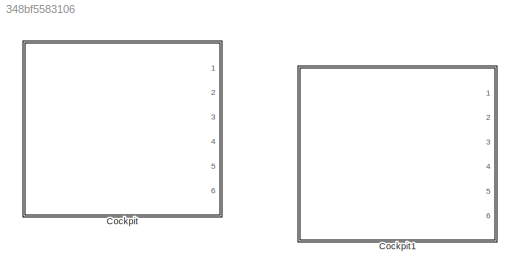
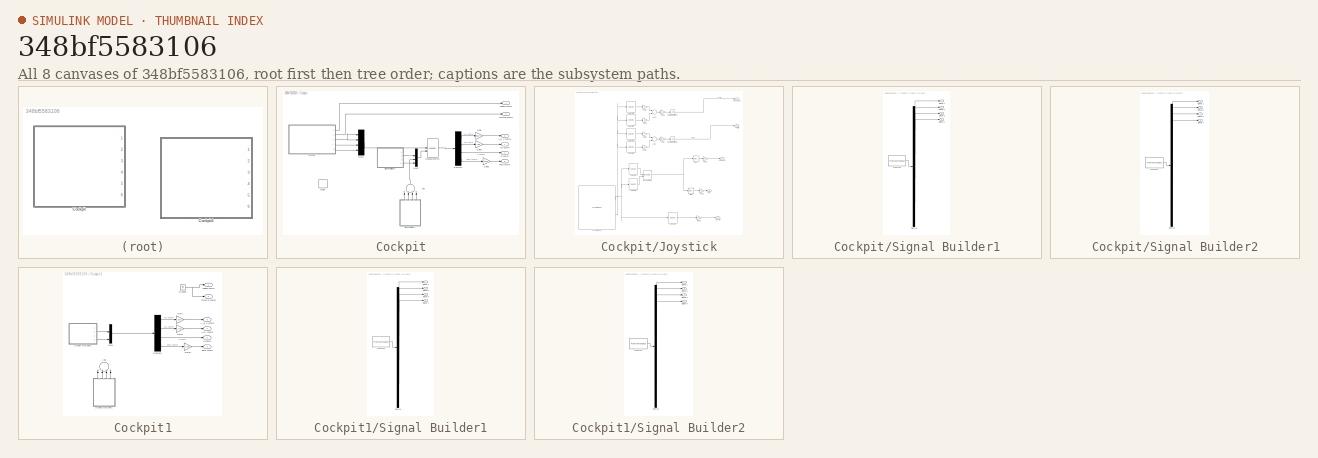
[diagram: thumbnail index - all 8 canvases of the model, root first then tree order]
MODEL slx_348bf5583106
KIND model
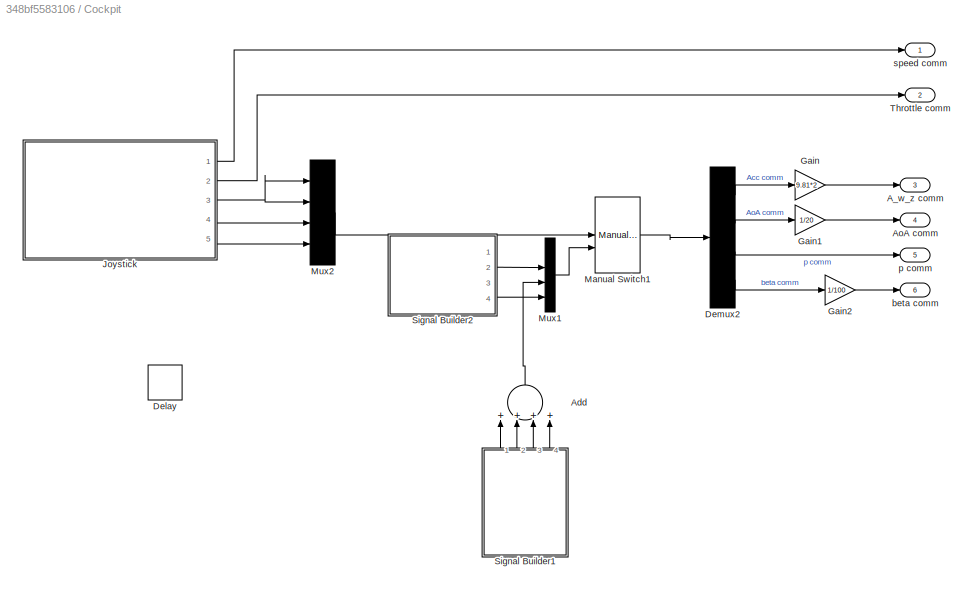
BLOCK [SubSystem] Cockpit
  FunctionWithSeparateData = off
  MaskHideContents = off
  MinAlgLoopOccurrences = off
  Opaque = off
  Ports = [0, 6]
  PropExecContextOutsideSubsystem = off
  RTWSystemCode = Auto
  RequestExecContextInheritance = off
BLOCK [Outport] Cockpit/A_w_z comm
  IconDisplay = Port number
  Port = 3
BLOCK [Sum] Cockpit/Add
  InputSameDT = off
  Inputs = ++++
  OutDataTypeStr = Inherit: Inherit via internal rule
  Ports = [4, 1]
  SaturateOnIntegerOverflow = off
BLOCK [Outport] Cockpit/AoA comm
  IconDisplay = Port number
  Port = 4
BLOCK [Delay] Cockpit/Delay
  Commented = on
  DelayLength = 1300
  InputPortMap = u0
  Ports = [1, 1]
BLOCK [Demux] Cockpit/Demux2
  DisplayOption = bar
  Ports = [1, 4]
BLOCK [Gain] Cockpit/Gain
  Gain = 9.81*2
  OutDataTypeStr = Inherit: Inherit via internal rule
  ParamDataTypeStr = Inherit: Inherit via internal rule
  SaturateOnIntegerOverflow = off
BLOCK [Gain] Cockpit/Gain1
  Gain = 1/20
  OutDataTypeStr = Inherit: Inherit via internal rule
  ParamDataTypeStr = Inherit: Inherit via internal rule
  SaturateOnIntegerOverflow = off
BLOCK [Gain] Cockpit/Gain2
  Gain = 1/100
  OutDataTypeStr = Inherit: Inherit via internal rule
  ParamDataTypeStr = Inherit: Inherit via internal rule
  SaturateOnIntegerOverflow = off
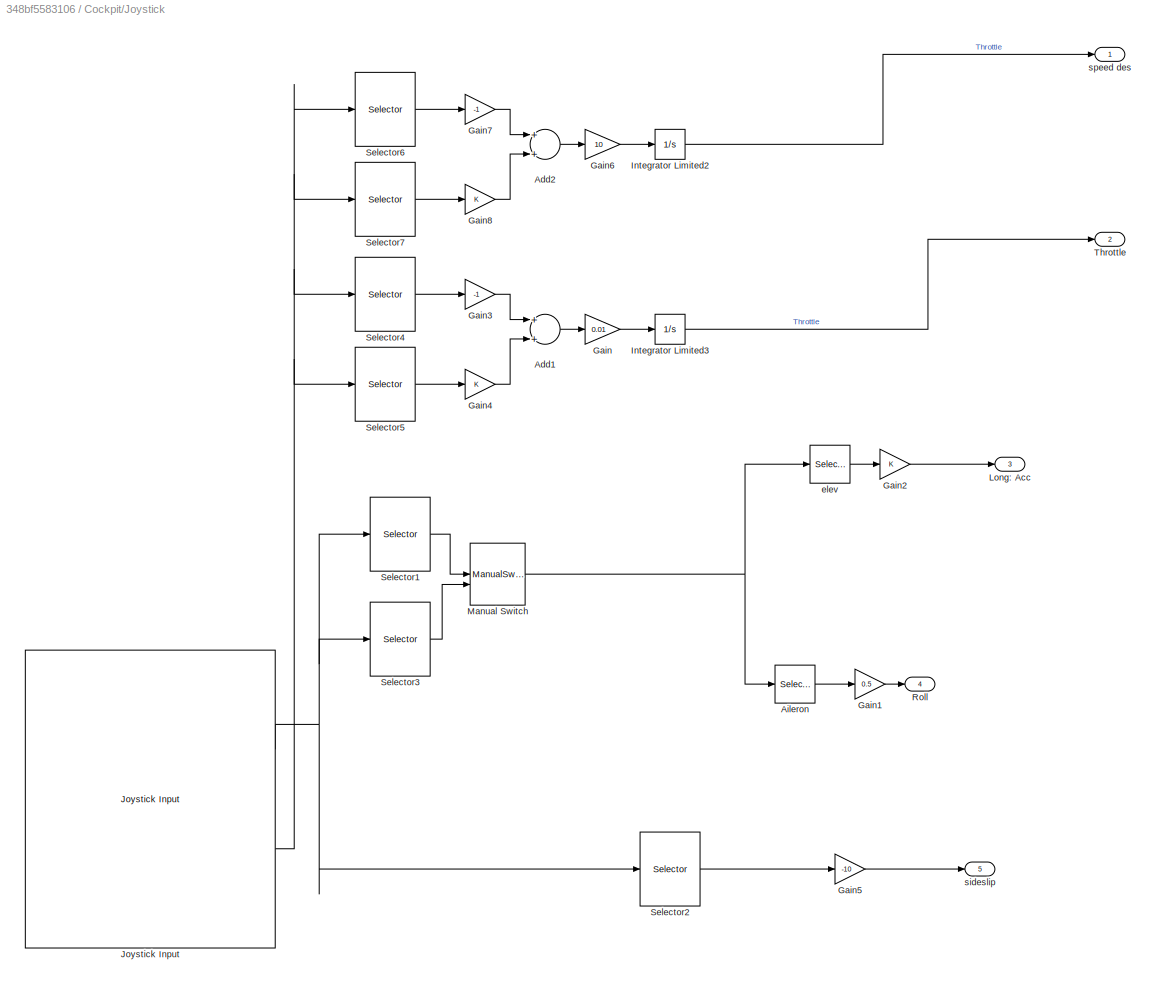
BLOCK [SubSystem] Cockpit/Joystick
  Commented = on
  FunctionWithSeparateData = off
  MaskHideContents = off
  MinAlgLoopOccurrences = off
  Opaque = off
  Ports = [0, 5]
  PropExecContextOutsideSubsystem = off
  RTWSystemCode = Auto
  RequestExecContextInheritance = off
BLOCK [Sum] Cockpit/Joystick/Add1
  InputSameDT = off
  OutDataTypeStr = Inherit: Inherit via internal rule
  Ports = [2, 1]
  SaturateOnIntegerOverflow = off
BLOCK [Sum] Cockpit/Joystick/Add2
  InputSameDT = off
  OutDataTypeStr = Inherit: Inherit via internal rule
  Ports = [2, 1]
  SaturateOnIntegerOverflow = off
BLOCK [Selector] Cockpit/Joystick/Aileron
  IndexOptions = Index vector (dialog)
  Indices = 1
  InputPortWidth = 2
  OutputSizes = 1
  Ports = [1, 1]
BLOCK [Gain] Cockpit/Joystick/Gain
  Gain = 0.01
  OutDataTypeStr = double
  ParamDataTypeStr = Inherit: Inherit via internal rule
  SaturateOnIntegerOverflow = off
BLOCK [Gain] Cockpit/Joystick/Gain1
  Gain = 0.5
  OutDataTypeStr = Inherit: Inherit via internal rule
  ParamDataTypeStr = Inherit: Inherit via internal rule
  SaturateOnIntegerOverflow = off
BLOCK [Gain] Cockpit/Joystick/Gain2
  OutDataTypeStr = Inherit: Inherit via internal rule
  ParamDataTypeStr = Inherit: Inherit via internal rule
  SaturateOnIntegerOverflow = off
BLOCK [Gain] Cockpit/Joystick/Gain3
  Gain = -1
  OutDataTypeStr = Inherit: Inherit via internal rule
  ParamDataTypeStr = Inherit: Inherit via internal rule
  SaturateOnIntegerOverflow = off
BLOCK [Gain] Cockpit/Joystick/Gain4
  OutDataTypeStr = Inherit: Inherit via internal rule
  ParamDataTypeStr = Inherit: Inherit via internal rule
  SaturateOnIntegerOverflow = off
BLOCK [Gain] Cockpit/Joystick/Gain5
  Gain = -10
  OutDataTypeStr = Inherit: Inherit via internal rule
  ParamDataTypeStr = Inherit: Inherit via internal rule
  SaturateOnIntegerOverflow = off
BLOCK [Gain] Cockpit/Joystick/Gain6
  Gain = 10
  OutDataTypeStr = double
  ParamDataTypeStr = Inherit: Inherit via internal rule
  SaturateOnIntegerOverflow = off
BLOCK [Gain] Cockpit/Joystick/Gain7
  Gain = -1
  OutDataTypeStr = Inherit: Inherit via internal rule
  ParamDataTypeStr = Inherit: Inherit via internal rule
  SaturateOnIntegerOverflow = off
BLOCK [Gain] Cockpit/Joystick/Gain8
  OutDataTypeStr = Inherit: Inherit via internal rule
  ParamDataTypeStr = Inherit: Inherit via internal rule
  SaturateOnIntegerOverflow = off
BLOCK [Integrator] Cockpit/Joystick/Integrator Limited2
  LimitOutput = on
  LowerSaturationLimit = -400
  Ports = [1, 1]
  UpperSaturationLimit = 400
BLOCK [Integrator] Cockpit/Joystick/Integrator Limited3
  LimitOutput = on
  LowerSaturationLimit = -1
  Ports = [1, 1]
  UpperSaturationLimit = 1
BLOCK [Reference] Cockpit/Joystick/Joystick Input  REF=vrlib/Joystick Input
  Ports = [0, 2]
  SourceBlock = vrlib/Joystick Input
  SourceType = Joystick Input
  adjustports = on
  forcefeed = off
  joyid = 1
BLOCK [Outport] Cockpit/Joystick/Long: Acc
  IconDisplay = Port number
  Port = 3
BLOCK [ManualSwitch] Cockpit/Joystick/Manual Switch
BLOCK [Outport] Cockpit/Joystick/Roll
  IconDisplay = Port number
  Port = 4
BLOCK [Selector] Cockpit/Joystick/Selector1
  IndexOptions = Index vector (dialog)
  Indices = 1:2
  InputPortWidth = 5
  OutputSizes = 1
  Ports = [1, 1]
BLOCK [Selector] Cockpit/Joystick/Selector2
  IndexOptions = Index vector (dialog)
  Indices = 3
  InputPortWidth = 5
  OutputSizes = 1
  Ports = [1, 1]
BLOCK [Selector] Cockpit/Joystick/Selector3
  IndexOptions = Index vector (dialog)
  Indices = 4:5
  InputPortWidth = 5
  OutputSizes = 1
  Ports = [1, 1]
BLOCK [Selector] Cockpit/Joystick/Selector4
  IndexOptions = Index vector (dialog)
  Indices = 1
  InputPortWidth = 10
  OutputSizes = 1
  Ports = [1, 1]
BLOCK [Selector] Cockpit/Joystick/Selector5
  IndexOptions = Index vector (dialog)
  Indices = 4
  InputPortWidth = 10
  OutputSizes = 1
  Ports = [1, 1]
BLOCK [Selector] Cockpit/Joystick/Selector6
  IndexOptions = Index vector (dialog)
  Indices = 1
  InputPortWidth = 10
  OutputSizes = 1
  Ports = [1, 1]
BLOCK [Selector] Cockpit/Joystick/Selector7
  IndexOptions = Index vector (dialog)
  Indices = 4
  InputPortWidth = 10
  OutputSizes = 1
  Ports = [1, 1]
BLOCK [Outport] Cockpit/Joystick/Throttle
  IconDisplay = Port number
  Port = 2
BLOCK [Selector] Cockpit/Joystick/elev
  IndexOptions = Index vector (dialog)
  Indices = 2
  InputPortWidth = 2
  OutputSizes = 1
  Ports = [1, 1]
BLOCK [Outport] Cockpit/Joystick/sideslip
  IconDisplay = Port number
  Port = 5
BLOCK [Outport] Cockpit/Joystick/speed des
  IconDisplay = Port number
BLOCK [ManualSwitch] Cockpit/Manual Switch1
  CurrentSetting = 0
BLOCK [Mux] Cockpit/Mux1
  DisplayOption = bar
  Ports = [4, 1]
BLOCK [Mux] Cockpit/Mux2
  Commented = on
  DisplayOption = bar
  Ports = [4, 1]
BLOCK [SubSystem] Cockpit/Signal Builder1
  ClipboardFcn = sigbuilder_block('clipboard');
  CloseFcn = sigbuilder_block('close');
  ContinueFcn = sigbuilder_block('continue');
  CopyFcn = sigbuilder_block('copy');
  DeleteFcn = sigbuilder_block('delete');
  FunctionWithSeparateData = off
  LoadFcn = sigbuilder_block('load');
  MaskHideContents = on
  MinAlgLoopOccurrences = off
  ModelCloseFcn = sigbuilder_block('modelClose');
  NameChangeFcn = sigbuilder_block('namechange');
  Opaque = off
  OpenFcn = sigbuilder_block('open',[0 30 1024.5 489 ]);
  PauseFcn = sigbuilder_block('pause');
  Ports = [0, 4]
  PreSaveFcn = sigbuilder_block('preSave');
  PropExecContextOutsideSubsystem = off
  RTWSystemCode = Auto
  RequestExecContextInheritance = off
  StartFcn = sigbuilder_block('start');
  StopFcn = sigbuilder_block('stop');
  Tag = STV Subsys
BLOCK [Demux] Cockpit/Signal Builder1/Demux
  Ports = [1, 4]
  Tag = STV Demux
BLOCK [FromWorkspace] Cockpit/Signal Builder1/FromWs
  SampleTime = 0
  Tag = STV FromWs
  VariableName = tuvar
  ZeroCross = on
BLOCK [Outport] Cockpit/Signal Builder1/Signal 1
  IconDisplay = Port number
  Tag = STV Outport
BLOCK [Outport] Cockpit/Signal Builder1/Signal 5
  IconDisplay = Port number
  Port = 2
  Tag = STV Outport
BLOCK [Outport] Cockpit/Signal Builder1/Signal 6
  IconDisplay = Port number
  Port = 3
  Tag = STV Outport
BLOCK [Outport] Cockpit/Signal Builder1/Signal 7
  IconDisplay = Port number
  Port = 4
  Tag = STV Outport
BLOCK [SubSystem] Cockpit/Signal Builder2
  ClipboardFcn = sigbuilder_block('clipboard');
  CloseFcn = sigbuilder_block('close');
  ContinueFcn = sigbuilder_block('continue');
  CopyFcn = sigbuilder_block('copy');
  DeleteFcn = sigbuilder_block('delete');
  FunctionWithSeparateData = off
  LoadFcn = sigbuilder_block('load');
  MaskHideContents = on
  MinAlgLoopOccurrences = off
  ModelCloseFcn = sigbuilder_block('modelClose');
  NameChangeFcn = sigbuilder_block('namechange');
  Opaque = off
  OpenFcn = sigbuilder_block('open',[6 28.5 1012.5 484.5 ]);
  PauseFcn = sigbuilder_block('pause');
  Ports = [0, 4]
  PreSaveFcn = sigbuilder_block('preSave');
  PropExecContextOutsideSubsystem = off
  RTWSystemCode = Auto
  RequestExecContextInheritance = off
  StartFcn = sigbuilder_block('start');
  StopFcn = sigbuilder_block('stop');
  Tag = STV Subsys
BLOCK [Demux] Cockpit/Signal Builder2/Demux
  Ports = [1, 4]
  Tag = STV Demux
BLOCK [FromWorkspace] Cockpit/Signal Builder2/FromWs
  SampleTime = 0
  Tag = STV FromWs
  VariableName = tuvar
  ZeroCross = on
BLOCK [Outport] Cockpit/Signal Builder2/Signal 1
  IconDisplay = Port number
  Tag = STV Outport
BLOCK [Outport] Cockpit/Signal Builder2/Signal 2
  IconDisplay = Port number
  Port = 2
  Tag = STV Outport
BLOCK [Outport] Cockpit/Signal Builder2/Signal 3
  IconDisplay = Port number
  Port = 3
  Tag = STV Outport
BLOCK [Outport] Cockpit/Signal Builder2/Signal 4
  IconDisplay = Port number
  Port = 4
  Tag = STV Outport
BLOCK [Outport] Cockpit/Throttle comm
  IconDisplay = Port number
  Port = 2
BLOCK [Outport] Cockpit/beta  comm
  IconDisplay = Port number
  Port = 6
BLOCK [Outport] Cockpit/p comm
  IconDisplay = Port number
  Port = 5
BLOCK [Outport] Cockpit/speed comm
  IconDisplay = Port number
BLOCK [SubSystem] Cockpit1
  FunctionWithSeparateData = off
  MaskHideContents = off
  MinAlgLoopOccurrences = off
  Opaque = off
  Ports = [0, 6]
  PropExecContextOutsideSubsystem = off
  RTWSystemCode = Auto
  RequestExecContextInheritance = off
BLOCK [Outport] Cockpit1/A_w_z comm
  IconDisplay = Port number
  Port = 3
BLOCK [Sum] Cockpit1/Add
  InputSameDT = off
  Inputs = ++++
  OutDataTypeStr = Inherit: Inherit via internal rule
  Ports = [4, 1]
  SaturateOnIntegerOverflow = off
BLOCK [Outport] Cockpit1/AoA comm
  IconDisplay = Port number
  Port = 4
BLOCK [Demux] Cockpit1/Demux2
  DisplayOption = bar
  Ports = [1, 4]
BLOCK [Gain] Cockpit1/Gain
  Gain = 9.81*2
  OutDataTypeStr = Inherit: Inherit via internal rule
  ParamDataTypeStr = Inherit: Inherit via internal rule
  SaturateOnIntegerOverflow = off
BLOCK [Gain] Cockpit1/Gain1
  Gain = 1/20
  OutDataTypeStr = Inherit: Inherit via internal rule
  ParamDataTypeStr = Inherit: Inherit via internal rule
  SaturateOnIntegerOverflow = off
BLOCK [Gain] Cockpit1/Gain2
  Gain = 1/100
  OutDataTypeStr = Inherit: Inherit via internal rule
  ParamDataTypeStr = Inherit: Inherit via internal rule
  SaturateOnIntegerOverflow = off
BLOCK [Ground] Cockpit1/Ground
BLOCK [Mux] Cockpit1/Mux1
  DisplayOption = bar
  Ports = [4, 1]
BLOCK [SubSystem] Cockpit1/Signal Builder1
  ClipboardFcn = sigbuilder_block('clipboard');
  CloseFcn = sigbuilder_block('close');
  ContinueFcn = sigbuilder_block('continue');
  CopyFcn = sigbuilder_block('copy');
  DeleteFcn = sigbuilder_block('delete');
  FunctionWithSeparateData = off
  LoadFcn = sigbuilder_block('load');
  MaskHideContents = on
  MinAlgLoopOccurrences = off
  ModelCloseFcn = sigbuilder_block('modelClose');
  NameChangeFcn = sigbuilder_block('namechange');
  Opaque = off
  OpenFcn = sigbuilder_block('open',[0 30 1024.5 489 ]);
  PauseFcn = sigbuilder_block('pause');
  Ports = [0, 4]
  PreSaveFcn = sigbuilder_block('preSave');
  PropExecContextOutsideSubsystem = off
  RTWSystemCode = Auto
  RequestExecContextInheritance = off
  StartFcn = sigbuilder_block('start');
  StopFcn = sigbuilder_block('stop');
  Tag = STV Subsys
BLOCK [Demux] Cockpit1/Signal Builder1/Demux
  Ports = [1, 4]
  Tag = STV Demux
BLOCK [FromWorkspace] Cockpit1/Signal Builder1/FromWs
  SampleTime = 0
  Tag = STV FromWs
  VariableName = tuvar
  ZeroCross = on
BLOCK [Outport] Cockpit1/Signal Builder1/Signal 1
  IconDisplay = Port number
  Tag = STV Outport
BLOCK [Outport] Cockpit1/Signal Builder1/Signal 5
  IconDisplay = Port number
  Port = 2
  Tag = STV Outport
BLOCK [Outport] Cockpit1/Signal Builder1/Signal 6
  IconDisplay = Port number
  Port = 3
  Tag = STV Outport
BLOCK [Outport] Cockpit1/Signal Builder1/Signal 7
  IconDisplay = Port number
  Port = 4
  Tag = STV Outport
BLOCK [SubSystem] Cockpit1/Signal Builder2
  ClipboardFcn = sigbuilder_block('clipboard');
  CloseFcn = sigbuilder_block('close');
  ContinueFcn = sigbuilder_block('continue');
  CopyFcn = sigbuilder_block('copy');
  DeleteFcn = sigbuilder_block('delete');
  FunctionWithSeparateData = off
  LoadFcn = sigbuilder_block('load');
  MaskHideContents = on
  MinAlgLoopOccurrences = off
  ModelCloseFcn = sigbuilder_block('modelClose');
  NameChangeFcn = sigbuilder_block('namechange');
  Opaque = off
  OpenFcn = sigbuilder_block('open',[6 28.5 1012.5 484.5 ]);
  PauseFcn = sigbuilder_block('pause');
  Ports = [0, 4]
  PreSaveFcn = sigbuilder_block('preSave');
  PropExecContextOutsideSubsystem = off
  RTWSystemCode = Auto
  RequestExecContextInheritance = off
  StartFcn = sigbuilder_block('start');
  StopFcn = sigbuilder_block('stop');
  Tag = STV Subsys
BLOCK [Demux] Cockpit1/Signal Builder2/Demux
  Ports = [1, 4]
  Tag = STV Demux
BLOCK [FromWorkspace] Cockpit1/Signal Builder2/FromWs
  SampleTime = 0
  Tag = STV FromWs
  VariableName = tuvar
  ZeroCross = on
BLOCK [Outport] Cockpit1/Signal Builder2/Signal 1
  IconDisplay = Port number
  Tag = STV Outport
BLOCK [Outport] Cockpit1/Signal Builder2/Signal 2
  IconDisplay = Port number
  Port = 2
  Tag = STV Outport
BLOCK [Outport] Cockpit1/Signal Builder2/Signal 3
  IconDisplay = Port number
  Port = 3
  Tag = STV Outport
BLOCK [Outport] Cockpit1/Signal Builder2/Signal 4
  IconDisplay = Port number
  Port = 4
  Tag = STV Outport
BLOCK [Outport] Cockpit1/Throttle comm
  IconDisplay = Port number
  Port = 2
BLOCK [Outport] Cockpit1/beta  comm
  IconDisplay = Port number
  Port = 6
BLOCK [Outport] Cockpit1/p comm
  IconDisplay = Port number
  Port = 5
BLOCK [Outport] Cockpit1/speed comm
  IconDisplay = Port number
LINE Cockpit/Add:1 -> Cockpit/Mux1:3
LINE Cockpit/Demux2:1 -> Cockpit/Gain:1
LINE Cockpit/Demux2:2 -> Cockpit/Gain1:1
LINE Cockpit/Demux2:3 -> Cockpit/p comm:1
LINE Cockpit/Demux2:4 -> Cockpit/Gain2:1
LINE Cockpit/Gain1:1 -> Cockpit/AoA comm:1
LINE Cockpit/Gain2:1 -> Cockpit/beta  comm:1
LINE Cockpit/Gain:1 -> Cockpit/A_w_z comm:1
LINE Cockpit/Joystick/Add1:1 -> Cockpit/Joystick/Gain:1
LINE Cockpit/Joystick/Add2:1 -> Cockpit/Joystick/Gain6:1
LINE Cockpit/Joystick/Aileron:1 -> Cockpit/Joystick/Gain1:1
LINE Cockpit/Joystick/Gain1:1 -> Cockpit/Joystick/Roll:1
LINE Cockpit/Joystick/Gain2:1 -> Cockpit/Joystick/Long: Acc:1
LINE Cockpit/Joystick/Gain3:1 -> Cockpit/Joystick/Add1:1
LINE Cockpit/Joystick/Gain4:1 -> Cockpit/Joystick/Add1:2
LINE Cockpit/Joystick/Gain5:1 -> Cockpit/Joystick/sideslip:1
LINE Cockpit/Joystick/Gain6:1 -> Cockpit/Joystick/Integrator Limited2:1
LINE Cockpit/Joystick/Gain7:1 -> Cockpit/Joystick/Add2:1
LINE Cockpit/Joystick/Gain8:1 -> Cockpit/Joystick/Add2:2
LINE Cockpit/Joystick/Gain:1 -> Cockpit/Joystick/Integrator Limited3:1
LINE Cockpit/Joystick/Integrator Limited2:1 -> Cockpit/Joystick/speed des:1
LINE Cockpit/Joystick/Integrator Limited3:1 -> Cockpit/Joystick/Throttle:1
NET Cockpit/Joystick/Joystick Input:1 -> Cockpit/Joystick/Selector1:1, Cockpit/Joystick/Selector2:1, Cockpit/Joystick/Selector3:1
NET Cockpit/Joystick/Joystick Input:2 -> Cockpit/Joystick/Selector4:1, Cockpit/Joystick/Selector5:1, Cockpit/Joystick/Selector6:1, Cockpit/Joystick/Selector7:1
NET Cockpit/Joystick/Manual Switch:1 -> Cockpit/Joystick/Aileron:1, Cockpit/Joystick/elev:1
LINE Cockpit/Joystick/Selector1:1 -> Cockpit/Joystick/Manual Switch:1
LINE Cockpit/Joystick/Selector2:1 -> Cockpit/Joystick/Gain5:1
LINE Cockpit/Joystick/Selector3:1 -> Cockpit/Joystick/Manual Switch:2
LINE Cockpit/Joystick/Selector4:1 -> Cockpit/Joystick/Gain3:1
LINE Cockpit/Joystick/Selector5:1 -> Cockpit/Joystick/Gain4:1
LINE Cockpit/Joystick/Selector6:1 -> Cockpit/Joystick/Gain7:1
LINE Cockpit/Joystick/Selector7:1 -> Cockpit/Joystick/Gain8:1
LINE Cockpit/Joystick/elev:1 -> Cockpit/Joystick/Gain2:1
LINE Cockpit/Joystick:1 -> Cockpit/speed comm:1
LINE Cockpit/Joystick:2 -> Cockpit/Throttle comm:1
NET Cockpit/Joystick:3 -> Cockpit/Mux2:1, Cockpit/Mux2:2
LINE Cockpit/Joystick:4 -> Cockpit/Mux2:3
LINE Cockpit/Joystick:5 -> Cockpit/Mux2:4
LINE Cockpit/Manual Switch1:1 -> Cockpit/Demux2:1
LINE Cockpit/Mux1:1 -> Cockpit/Manual Switch1:2
LINE Cockpit/Mux2:1 -> Cockpit/Manual Switch1:1
LINE Cockpit/Signal Builder1:1 -> Cockpit/Add:1
LINE Cockpit/Signal Builder1:2 -> Cockpit/Add:2
LINE Cockpit/Signal Builder1:3 -> Cockpit/Add:3
LINE Cockpit/Signal Builder1:4 -> Cockpit/Add:4
LINE Cockpit/Signal Builder2:2 -> Cockpit/Mux1:2
LINE Cockpit/Signal Builder2:4 -> Cockpit/Mux1:4
LINE Cockpit1/Demux2:1 -> Cockpit1/Gain:1
LINE Cockpit1/Demux2:2 -> Cockpit1/Gain1:1
LINE Cockpit1/Demux2:3 -> Cockpit1/p comm:1
LINE Cockpit1/Demux2:4 -> Cockpit1/Gain2:1
LINE Cockpit1/Gain1:1 -> Cockpit1/AoA comm:1
LINE Cockpit1/Gain2:1 -> Cockpit1/beta  comm:1
LINE Cockpit1/Gain:1 -> Cockpit1/A_w_z comm:1
NET Cockpit1/Ground:1 -> Cockpit1/Throttle comm:1, Cockpit1/speed comm:1
LINE Cockpit1/Mux1:1 -> Cockpit1/Demux2:1
LINE Cockpit1/Signal Builder1:1 -> Cockpit1/Add:1
LINE Cockpit1/Signal Builder1:2 -> Cockpit1/Add:2
LINE Cockpit1/Signal Builder1:3 -> Cockpit1/Add:3
LINE Cockpit1/Signal Builder1:4 -> Cockpit1/Add:4
LINE Cockpit1/Signal Builder2:2 -> Cockpit1/Mux1:2
LINE Cockpit1/Signal Builder2:4 -> Cockpit1/Mux1:4
note: NET lines group one-source signal fan-out (src -> all destinations, sorted); 1:1 wires keep LINE
